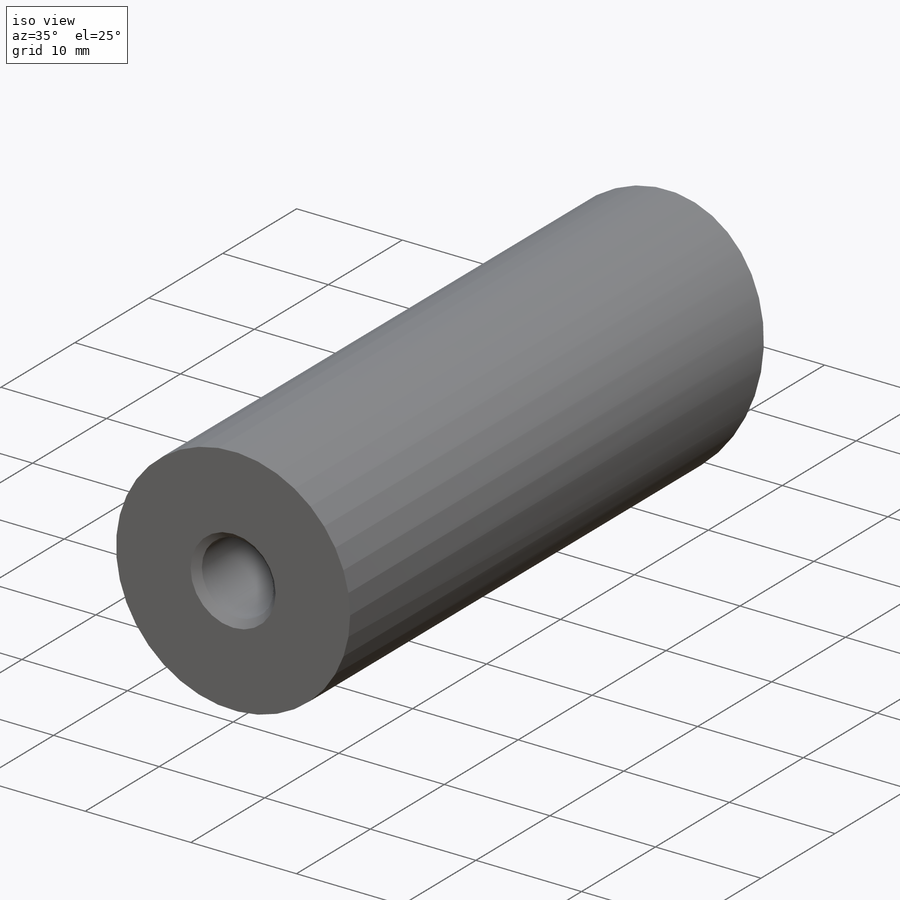
[diagram: iso view]
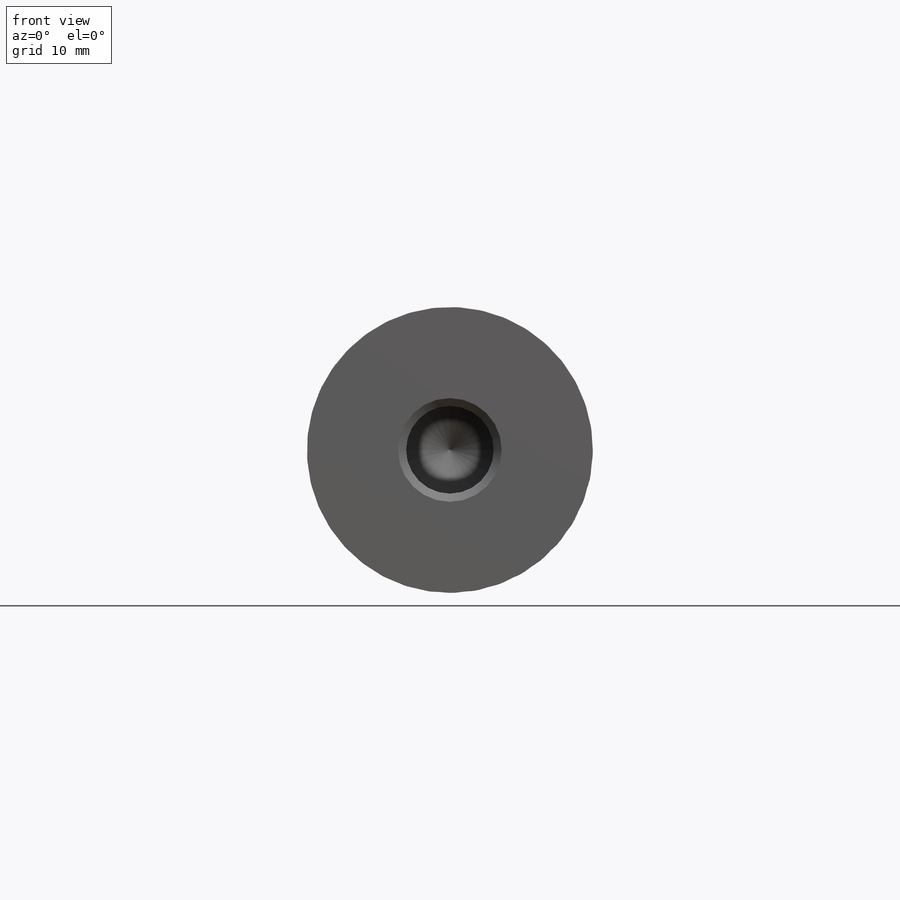
[diagram: front view]
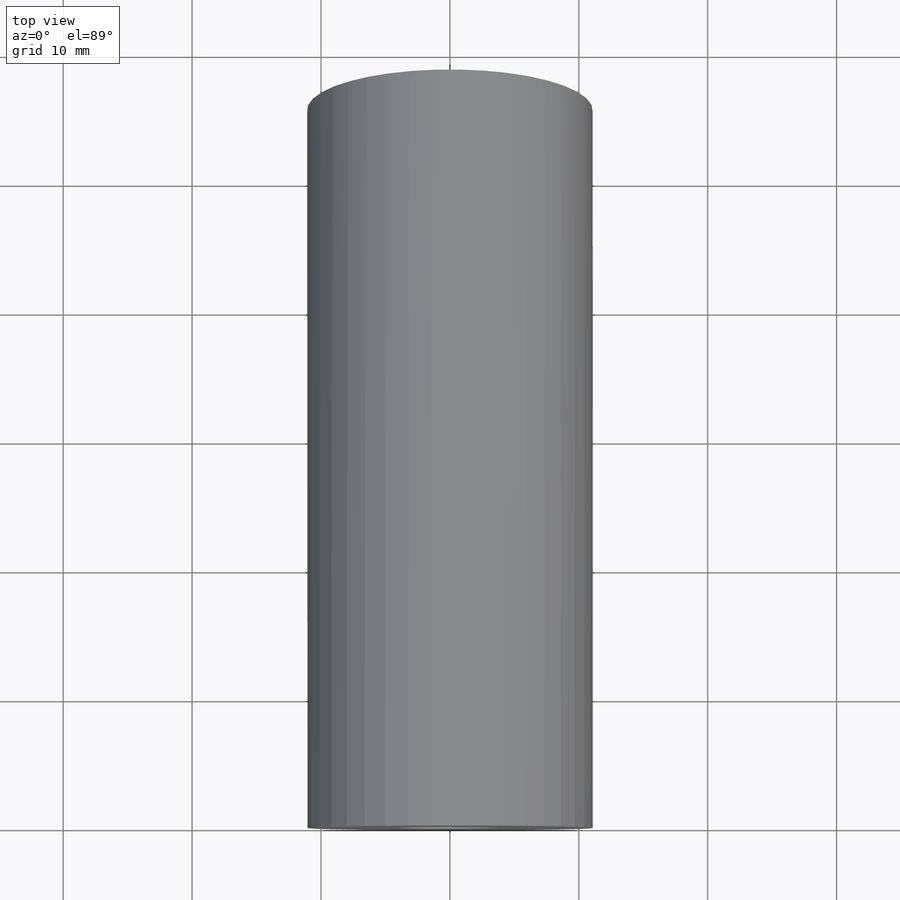
[diagram: top view]
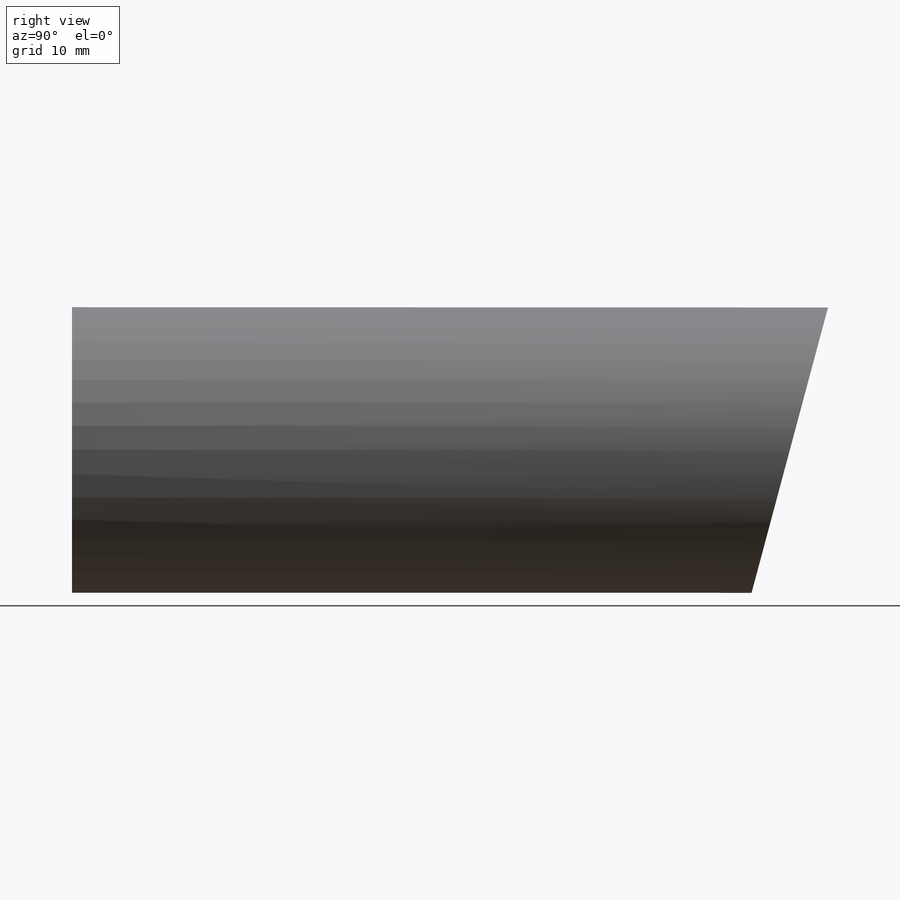
[diagram: right view]
SOLIDWORKS PART (.sldprt)
format: sldprt  version: not decoded by parser v0  size: 269,824 bytes
history: native  units: mm
features: sketch x7, plane x4, hole x2, thread x2, material x1, revolve x1, cut_extrude x1 (+8 scaffold rows collapsed)
feature tree (26):
  scaffold x8  (default folders/planes/origin — collapsed)
  material  "Material <nicht festgelegt>"
  plane  "Ebene vorne"
  plane  "Ebene oben"
  plane  "Ebene rechts"
  sketch  "Skizze1"
  revolve  "Rotation1"  Angle=360deg
  sketch  "Skizze2"  dims[c1.D1=~22.171186mm c2.D1=15.0deg c3.D1=~22.424703mm c4.D1=15.0deg]
  cut_extrude  "Schnitt-Linear austragen1"  Depth=26mm
  hole  "M8 Gewindebohrung1"  Diameter=6.8mm Depth=22.25mm
  sketch  "Skizze4"
  sketch  "Skizze3"  dims[hole-wizard template sketch: 39 standard entries collapsed; hole parameters kept: c13.Bohrerdurchmesser=6.8mm c13.Bohrungstiefe=22.25mm c13.Senkdurchmesser (Oben)=8.05mm c13.D4=~33.297463mm c13.Senkwinkel (Oben)=90.0deg c14.D5=~14.816244mm c14.Spitzenwinkel=118.0deg]
  thread  "Bohrungsgewinde1"  Diameter=18.059348mm  [1 undecoded]
  sketch  "Skizze5"
  plane  "Ebene1"
  hole  "M8 Gewindebohrung2"  Diameter=6.8mm Depth=22.25mm
  sketch  "Skizze7"
  sketch  "Skizze6"  dims[hole-wizard template sketch: 39 standard entries collapsed; hole parameters kept: c13.Bohrerdurchmesser=6.8mm c13.Bohrungstiefe=22.25mm c13.Senkdurchmesser (Oben)=8.05mm c13.D4=~33.297463mm c13.Senkwinkel (Oben)=90.0deg c14.D5=~14.816244mm c14.Spitzenwinkel=118.0deg]
  thread  "Bohrungsgewinde2"  Diameter=16mm  [1 undecoded]
decode coverage: 9 of 13 modeling features carry decoded parameters
note: ~ marks probable driven/reference dimensions
note: 2 parameter values undecoded
note: suppression state not decoded; provenance and decode notes live in map.json
